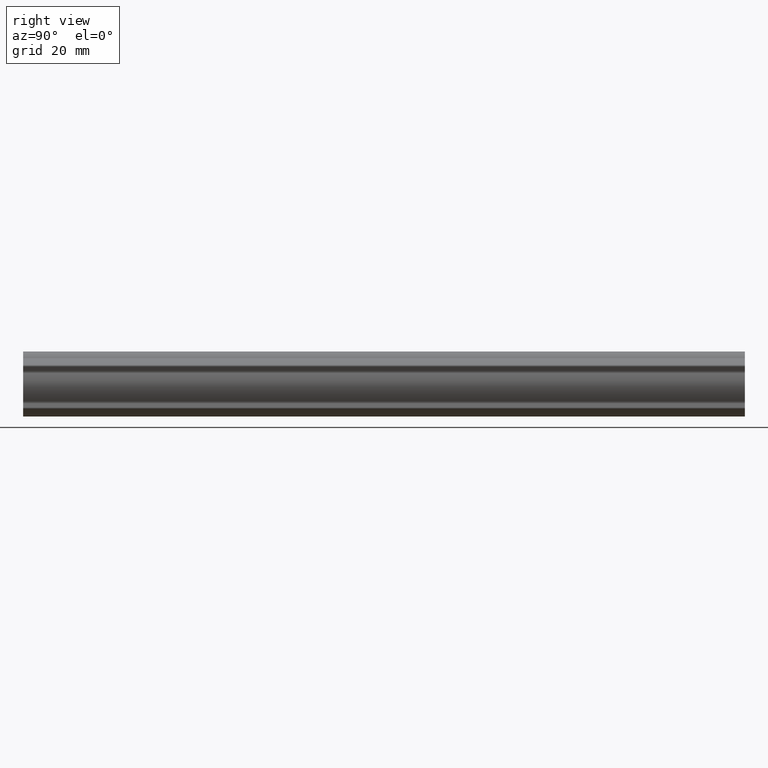
[diagram: clean part render]
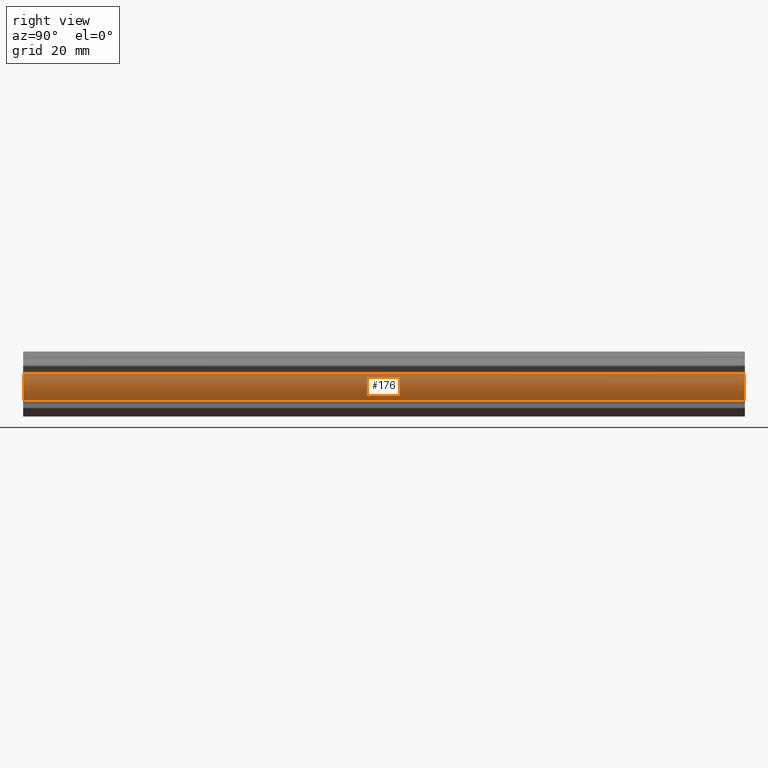
[diagram: same view with one face highlighted and labeled with its STEP entity id]
A machine part, right view. The second image highlights one B-rep face of the part: STEP entity #176.
In plain terms, the highlighted cylindrical surface (edge-blend (fillet) strip) has radius 8.0261 mm, axis along (0, 1, 0).
Its self-contained STEP definition (entity closure, byte-faithful):
#176=ADVANCED_FACE('',(#511),#510,.T.);
#510=CYLINDRICAL_SURFACE('',#1290,8.02606458758E+00);
#511=FACE_OUTER_BOUND('',#1291,.T.);
#1287=CARTESIAN_POINT('',(1.28739062305E+01,1.00000000000E+03,8.14271854099E+00));
#1288=DIRECTION('',(-0.00000000000E+00,1.00000000000E+00,-0.00000000000E+00));
#1289=DIRECTION('',(-0.00000000000E+00,-0.00000000000E+00,1.00000000000E+00));
#1290=AXIS2_PLACEMENT_3D('',#1287,#1288,#1289);
#1291=EDGE_LOOP('',(#1767,#1768,#1769,#1770));
#1767=ORIENTED_EDGE('',*,*,#2159,.F.);
#1768=ORIENTED_EDGE('',*,*,#2203,.F.);
#1769=ORIENTED_EDGE('',*,*,#2151,.T.);
#1770=ORIENTED_EDGE('',*,*,#2202,.T.);
#2151=EDGE_CURVE('',#2596,#2589,#2597,.T.);
#2159=EDGE_CURVE('',#2644,#2651,#2652,.T.);
#2202=EDGE_CURVE('',#2589,#2651,#2930,.T.);
#2203=EDGE_CURVE('',#2596,#2644,#2936,.T.);
#2589=VERTEX_POINT('',#4211);
#2596=VERTEX_POINT('',#4215);
#2597=CIRCLE('',#4219,8.02606458758E+00);
#2644=VERTEX_POINT('',#4245);
#2651=VERTEX_POINT('',#4250);
#2652=CIRCLE('',#4254,8.02606458758E+00);
#2930=LINE('',#4411,#4412);
#2936=LINE('',#4414,#4415);
#4211=CARTESIAN_POINT('',(1.99852845023E+01,2.00000000000E+02,1.18637414971E+01));
#4215=CARTESIAN_POINT('',(1.99788772609E+01,2.00000000000E+02,4.40948007153E+00));
#4216=CARTESIAN_POINT('',(1.28739062305E+01,2.00000000000E+02,8.14271854099E+00));
#4217=DIRECTION('',(0.00000000000E+00,-1.00000000000E+00,0.00000000000E+00));
#4218=DIRECTION('',(-0.00000000000E+00,-0.00000000000E+00,-1.00000000000E+00));
#4219=AXIS2_PLACEMENT_3D('',#4216,#4217,#4218);
#4245=CARTESIAN_POINT('',(1.99788772609E+01,0.00000000000E+00,4.40948007153E+00));
#4250=CARTESIAN_POINT('',(1.99852845023E+01,0.00000000000E+00,1.18637414971E+01));
#4251=CARTESIAN_POINT('',(1.28739062305E+01,0.00000000000E+00,8.14271854099E+00));
#4252=DIRECTION('',(0.00000000000E+00,-1.00000000000E+00,0.00000000000E+00));
#4253=DIRECTION('',(-0.00000000000E+00,-0.00000000000E+00,-1.00000000000E+00));
#4254=AXIS2_PLACEMENT_3D('',#4251,#4252,#4253);
#4411=CARTESIAN_POINT('',(1.99852845023E+01,2.00000000000E+02,1.18637414971E+01));
#4412=VECTOR('',#4413,2.00000000000E+02);
#4413=DIRECTION('',(0.00000000000E+00,-1.00000000000E+00,0.00000000000E+00));
#4414=CARTESIAN_POINT('',(1.99788772609E+01,2.00000000000E+02,4.40948007153E+00));
#4415=VECTOR('',#4416,2.00000000000E+02);
#4416=DIRECTION('',(0.00000000000E+00,-1.00000000000E+00,0.00000000000E+00));